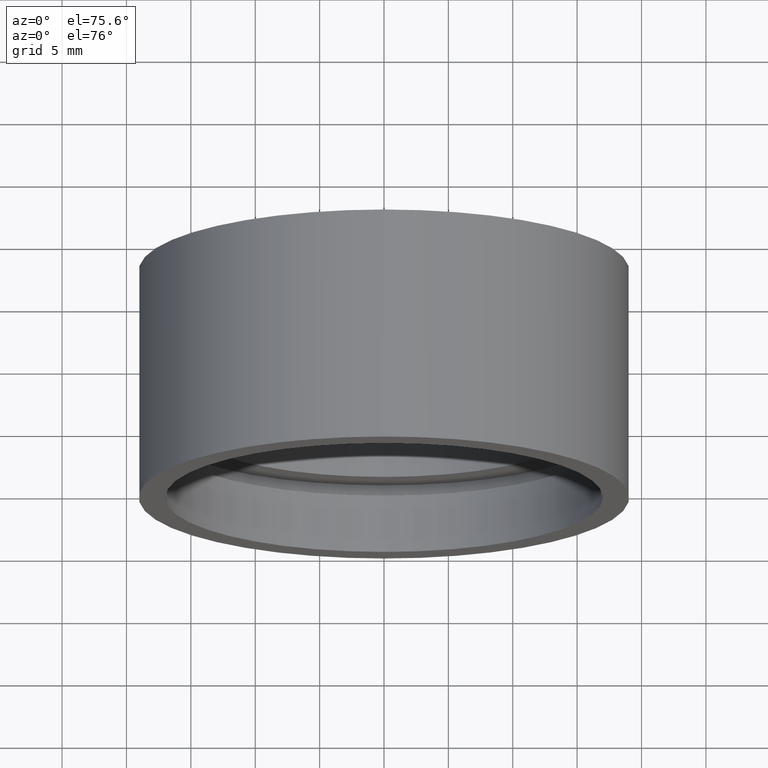
[diagram: clean part render]
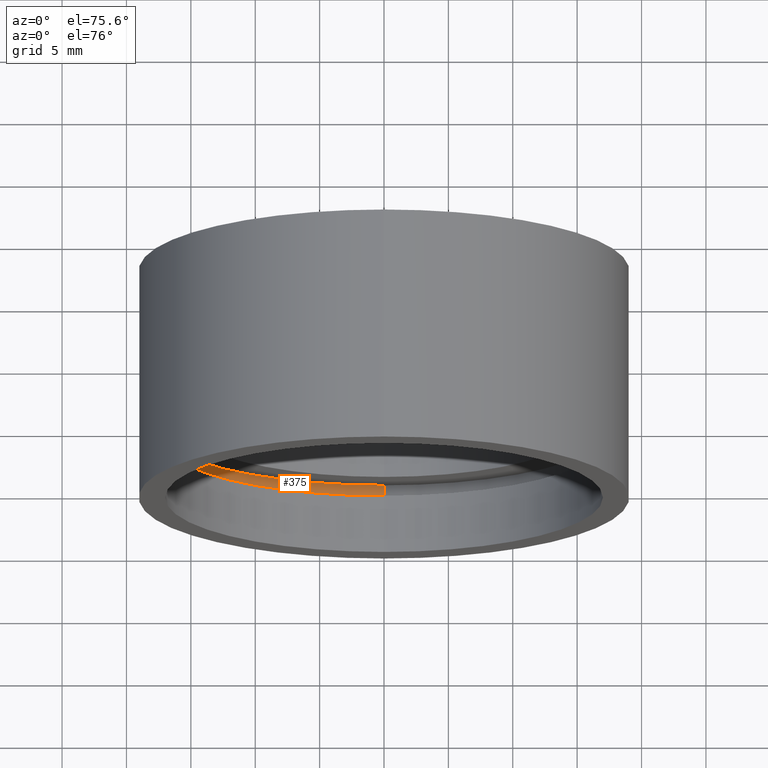
[diagram: same view with one face highlighted and labeled with its STEP entity id]
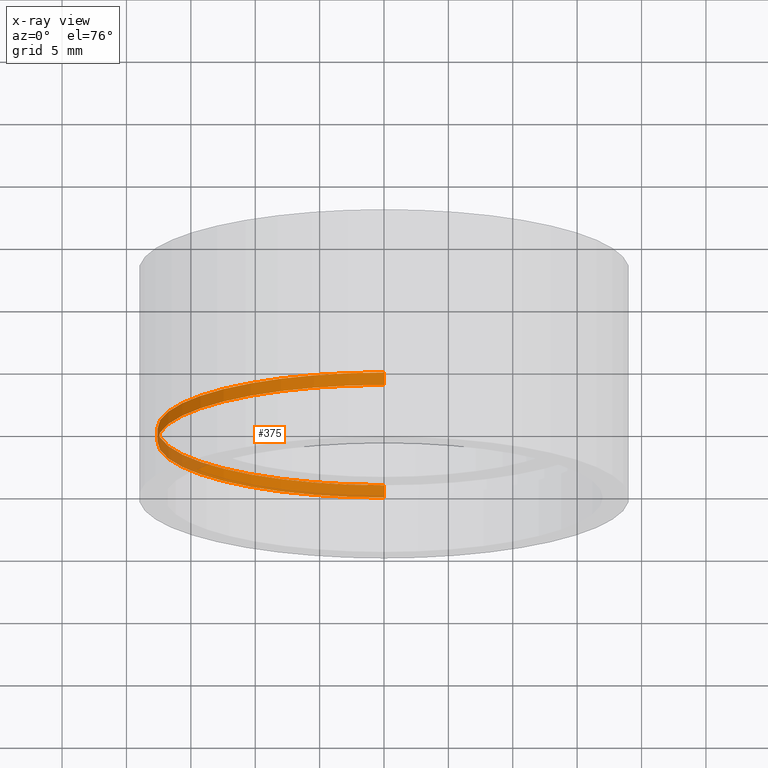
[diagram: x-ray of the same camera — body ghosted, the highlighted face saturated]
A machine part, auxiliary view. The second image highlights one B-rep face of the part: STEP entity #375.
The next image is the same camera in x-ray: the body ghosted, the highlighted face saturated — about 10% of this face is hidden behind the body in this view.
In plain terms, the highlighted cylindrical surface (partial cylindrical patch) has radius 17.6 mm, axis along (-0, 1, -0).
Its self-contained STEP definition (entity closure, byte-faithful):
#1 = CARTESIAN_POINT ( 'NONE',  ( 0.0000000000000000000, 4.499999999999976000, 17.60000000000002300 ) ) ;
#50 = AXIS2_PLACEMENT_3D ( 'NONE', #214, #495, #356 ) ;
#79 = AXIS2_PLACEMENT_3D ( 'NONE', #282, #336, #517 ) ;
#89 = VECTOR ( 'NONE', #428, 1000.000000000000000 ) ;
#90 = CARTESIAN_POINT ( 'NONE',  ( 2.155378366499344400E-015, 161.3761669434274500, -17.60000000000002300 ) ) ;
#106 = EDGE_CURVE ( 'NONE', #156, #515, #307, .T. ) ;
#110 = VECTOR ( 'NONE', #521, 1000.000000000000000 ) ;
#120 = LINE ( 'NONE', #532, #89 ) ;
#142 = CARTESIAN_POINT ( 'NONE',  ( 0.0000000000000000000, 5.499999999999976900, 17.60000000000002300 ) ) ;
#156 = VERTEX_POINT ( 'NONE', #259 ) ;
#170 = VERTEX_POINT ( 'NONE', #461 ) ;
#174 = CARTESIAN_POINT ( 'NONE',  ( 0.0000000000000000000, 5.499999999999976900, 0.0000000000000000000 ) ) ;
#214 = CARTESIAN_POINT ( 'NONE',  ( 0.0000000000000000000, 4.499999999999976000, 0.0000000000000000000 ) ) ;
#237 = LINE ( 'NONE', #90, #110 ) ;
#259 = CARTESIAN_POINT ( 'NONE',  ( 2.155378366499344400E-015, 4.499999999999976000, -17.60000000000002300 ) ) ;
#273 = VERTEX_POINT ( 'NONE', #142 ) ;
#277 = AXIS2_PLACEMENT_3D ( 'NONE', #174, #499, #503 ) ;
#282 = CARTESIAN_POINT ( 'NONE',  ( 0.0000000000000000000, 161.3761669434274500, 0.0000000000000000000 ) ) ;
#296 = EDGE_LOOP ( 'NONE', ( #364, #489, #603, #337 ) ) ;
#307 = CIRCLE ( 'NONE', #50, 17.60000000000002300 ) ;
#310 = CIRCLE ( 'NONE', #277, 17.60000000000002300 ) ;
#322 = EDGE_CURVE ( 'NONE', #156, #170, #237, .T. ) ;
#336 = DIRECTION ( 'NONE',  ( -0.0000000000000000000, 1.000000000000000000, -0.0000000000000000000 ) ) ;
#337 = ORIENTED_EDGE ( 'NONE', *, *, #543, .F. ) ;
#356 = DIRECTION ( 'NONE',  ( 0.0000000000000000000, 0.0000000000000000000, 1.000000000000000000 ) ) ;
#364 = ORIENTED_EDGE ( 'NONE', *, *, #106, .F. ) ;
#375 = ADVANCED_FACE ( 'NONE', ( #460 ), #604, .F. ) ;
#428 = DIRECTION ( 'NONE',  ( -0.0000000000000000000, 1.000000000000000000, -0.0000000000000000000 ) ) ;
#460 = FACE_OUTER_BOUND ( 'NONE', #296, .T. ) ;
#461 = CARTESIAN_POINT ( 'NONE',  ( 2.155378366499344400E-015, 5.499999999999976900, -17.60000000000002300 ) ) ;
#489 = ORIENTED_EDGE ( 'NONE', *, *, #322, .T. ) ;
#495 = DIRECTION ( 'NONE',  ( -0.0000000000000000000, 1.000000000000000000, -0.0000000000000000000 ) ) ;
#499 = DIRECTION ( 'NONE',  ( -0.0000000000000000000, 1.000000000000000000, -0.0000000000000000000 ) ) ;
#503 = DIRECTION ( 'NONE',  ( 0.0000000000000000000, 0.0000000000000000000, 1.000000000000000000 ) ) ;
#515 = VERTEX_POINT ( 'NONE', #1 ) ;
#517 = DIRECTION ( 'NONE',  ( 0.0000000000000000000, 0.0000000000000000000, 1.000000000000000000 ) ) ;
#521 = DIRECTION ( 'NONE',  ( -0.0000000000000000000, 1.000000000000000000, -0.0000000000000000000 ) ) ;
#532 = CARTESIAN_POINT ( 'NONE',  ( 0.0000000000000000000, 161.3761669434274500, 17.60000000000002300 ) ) ;
#543 = EDGE_CURVE ( 'NONE', #515, #273, #120, .T. ) ;
#566 = EDGE_CURVE ( 'NONE', #170, #273, #310, .T. ) ;
#603 = ORIENTED_EDGE ( 'NONE', *, *, #566, .T. ) ;
#604 = CYLINDRICAL_SURFACE ( 'NONE', #79, 17.60000000000002300 ) ;